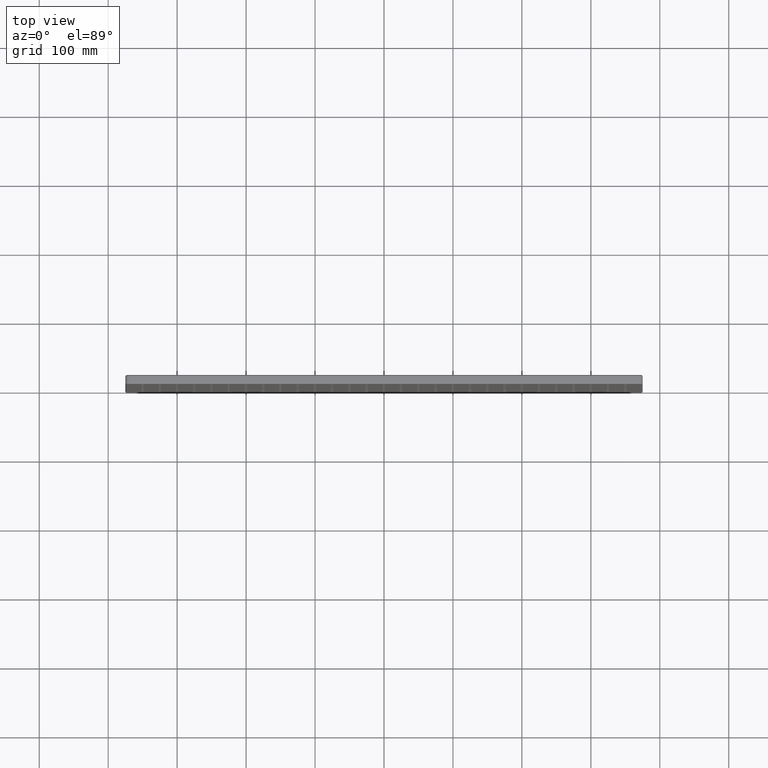
[diagram: clean part render]
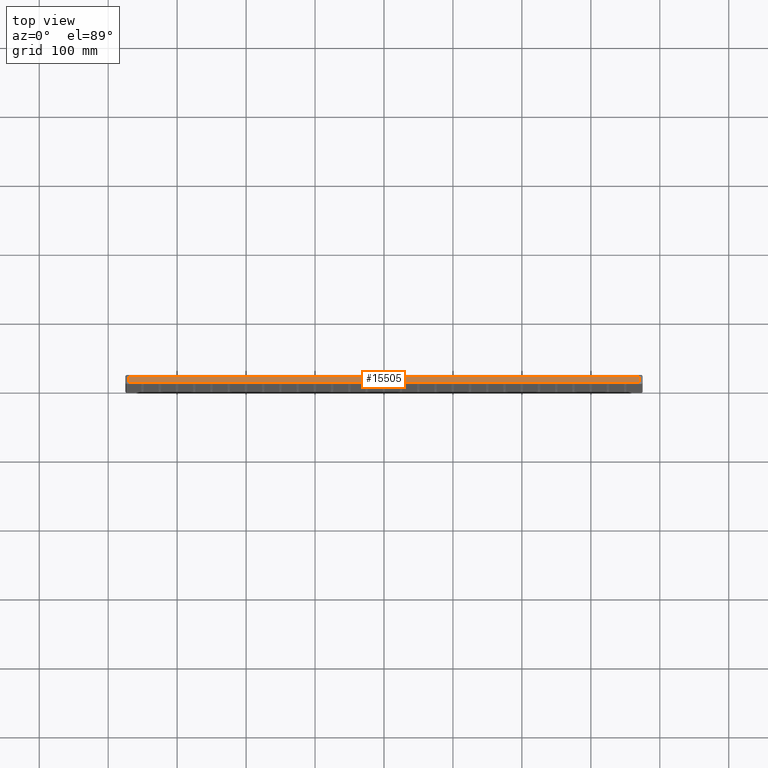
[diagram: same view with one face highlighted and labeled with its STEP entity id]
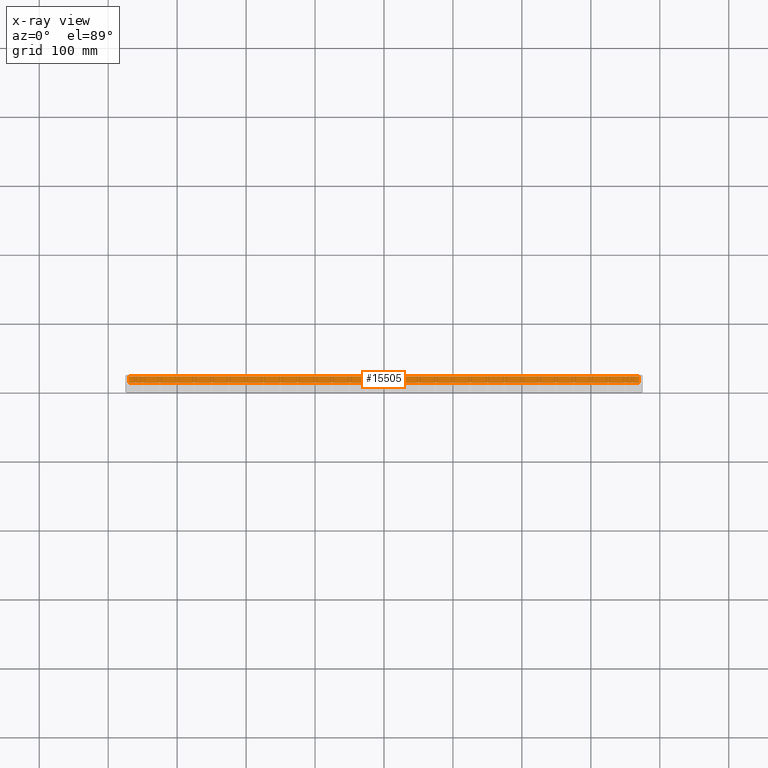
[diagram: x-ray of the same camera — body ghosted, the highlighted face saturated]
A machine part, top view. The second image highlights one B-rep face of the part: STEP entity #15505.
The next image is the same camera in x-ray: the body ghosted, the highlighted face saturated — about 0% of this face is hidden behind the body in this view.
In plain terms, the highlighted planar face has unit normal (0, 0, -1).
Its self-contained STEP definition (entity closure, byte-faithful):
#45 = ORIENTED_EDGE ( 'NONE', *, *, #16042, .T. ) ;
#62 = LINE ( 'NONE', #31143, #50924 ) ;
#597 = EDGE_CURVE ( 'NONE', #43391, #44720, #62, .T. ) ;
#886 = CARTESIAN_POINT ( 'NONE',  ( -370.0000000000001100, 13.00000000000000000, 374.9999999999998900 ) ) ;
#1394 = DIRECTION ( 'NONE',  ( -1.000000000000000000, 0.0000000000000000000, -0.0000000000000000000 ) ) ;
#8482 = CARTESIAN_POINT ( 'NONE',  ( -370.0000000000001100, 11.00000000000000000, 374.9999999999998900 ) ) ;
#9642 = VECTOR ( 'NONE', #54918, 1000.000000000000000 ) ;
#11539 = VECTOR ( 'NONE', #42879, 1000.000000000000000 ) ;
#11613 = DIRECTION ( 'NONE',  ( -0.0000000000000000000, -1.000000000000000000, -0.0000000000000000000 ) ) ;
#13301 = EDGE_LOOP ( 'NONE', ( #45, #23876, #21874, #44699 ) ) ;
#15505 = ADVANCED_FACE ( 'NONE', ( #62016 ), #50488, .F. ) ;
#16042 = EDGE_CURVE ( 'NONE', #55874, #32308, #34272, .T. ) ;
#16102 = CARTESIAN_POINT ( 'NONE',  ( -370.0000000000001100, 13.00000000000000000, 374.9999999999998900 ) ) ;
#16154 = LINE ( 'NONE', #8482, #11539 ) ;
#17832 = EDGE_CURVE ( 'NONE', #32308, #44720, #55663, .T. ) ;
#17984 = VECTOR ( 'NONE', #63038, 1000.000000000000000 ) ;
#19043 = CARTESIAN_POINT ( 'NONE',  ( -370.0000000000001100, 2.000000000000003600, 374.9999999999998900 ) ) ;
#21874 = ORIENTED_EDGE ( 'NONE', *, *, #597, .F. ) ;
#23876 = ORIENTED_EDGE ( 'NONE', *, *, #17832, .T. ) ;
#30915 = DIRECTION ( 'NONE',  ( 0.0000000000000000000, 0.0000000000000000000, -1.000000000000000000 ) ) ;
#31143 = CARTESIAN_POINT ( 'NONE',  ( 370.0000000000001100, 13.00000000000000000, 374.9999999999997700 ) ) ;
#32308 = VERTEX_POINT ( 'NONE', #19043 ) ;
#33622 = CARTESIAN_POINT ( 'NONE',  ( -370.0000000000001100, 2.000000000000000000, 374.9999999999998900 ) ) ;
#34272 = LINE ( 'NONE', #886, #9642 ) ;
#39929 = CARTESIAN_POINT ( 'NONE',  ( 370.0000000000001100, 11.00000000000000000, 374.9999999999997700 ) ) ;
#42879 = DIRECTION ( 'NONE',  ( -1.000000000000000000, -0.0000000000000000000, -0.0000000000000000000 ) ) ;
#43391 = VERTEX_POINT ( 'NONE', #39929 ) ;
#44193 = AXIS2_PLACEMENT_3D ( 'NONE', #16102, #30915, #1394 ) ;
#44699 = ORIENTED_EDGE ( 'NONE', *, *, #50700, .T. ) ;
#44720 = VERTEX_POINT ( 'NONE', #52531 ) ;
#46916 = CARTESIAN_POINT ( 'NONE',  ( -370.0000000000001100, 11.00000000000000000, 374.9999999999998900 ) ) ;
#50488 = PLANE ( 'NONE',  #44193 ) ;
#50700 = EDGE_CURVE ( 'NONE', #43391, #55874, #16154, .T. ) ;
#50924 = VECTOR ( 'NONE', #11613, 1000.000000000000000 ) ;
#52531 = CARTESIAN_POINT ( 'NONE',  ( 370.0000000000001100, 2.000000000000003600, 374.9999999999997700 ) ) ;
#54918 = DIRECTION ( 'NONE',  ( -0.0000000000000000000, -1.000000000000000000, -0.0000000000000000000 ) ) ;
#55663 = LINE ( 'NONE', #33622, #17984 ) ;
#55874 = VERTEX_POINT ( 'NONE', #46916 ) ;
#62016 = FACE_OUTER_BOUND ( 'NONE', #13301, .T. ) ;
#63038 = DIRECTION ( 'NONE',  ( 1.000000000000000000, -0.0000000000000000000, 0.0000000000000000000 ) ) ;